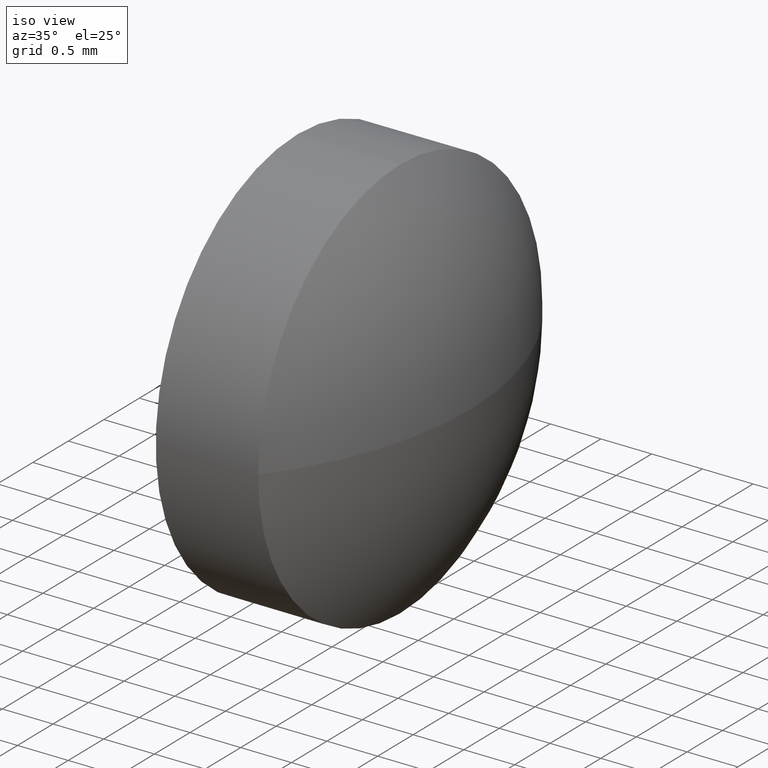
[diagram: clean part render]
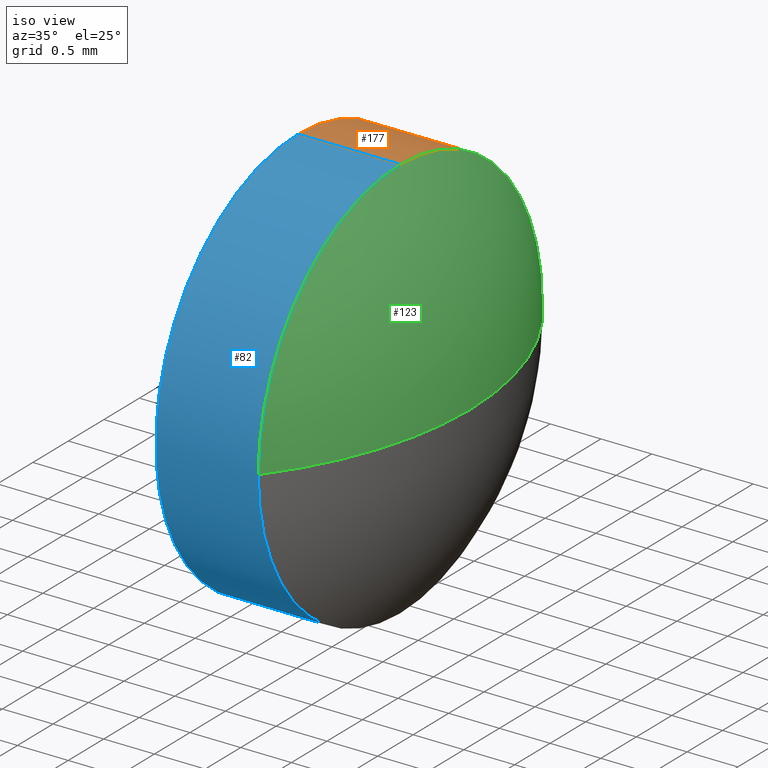
[diagram: same view with three faces highlighted in distinct colors, each labeled with its STEP entity id]
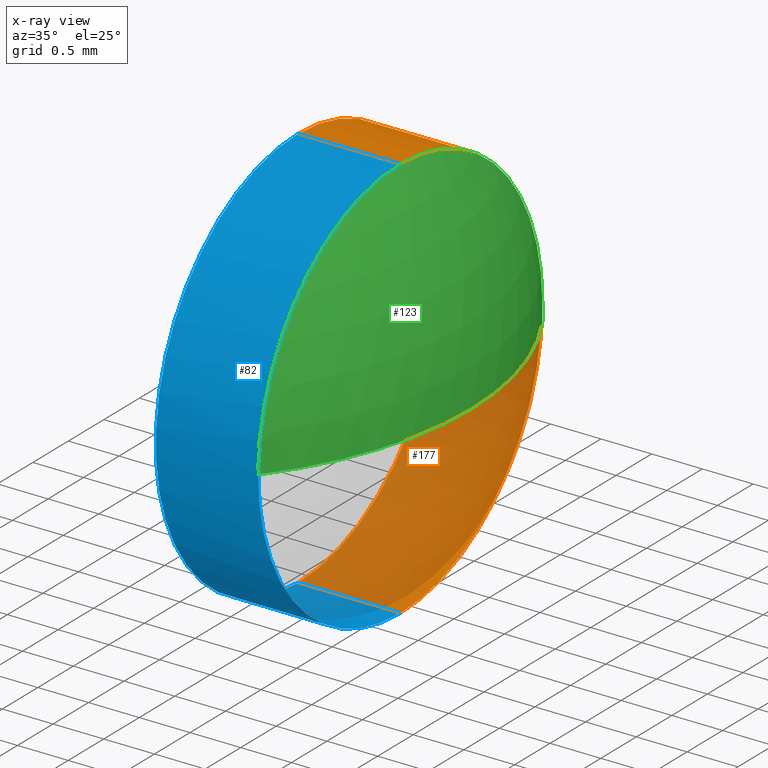
[diagram: x-ray of the same camera — body ghosted, the three highlighted faces saturated]
A machine part, iso view with three faces highlighted in distinct colors.
The next image is the same camera in x-ray (body ghosted, the three faces saturated) — at least one of them is partly hidden behind the body in this view.
Their STEP definitions:

[orange] entity #177 — the highlighted cylindrical surface (partial cylindrical patch) has radius 2 mm, axis along (-1, -0, -0).
#1 = LINE ( 'NONE', #116, #63 ) ;
#3 = ORIENTED_EDGE ( 'NONE', *, *, #127, .F. ) ;
#5 = CARTESIAN_POINT ( 'NONE',  ( 388.6927272250636600, 21.68539423568211400, 1.999999999999998200 ) ) ;
#6 = CIRCLE ( 'NONE', #174, 1.999999999999998200 ) ;
#10 = ORIENTED_EDGE ( 'NONE', *, *, #101, .T. ) ;
#12 = DIRECTION ( 'NONE',  ( -1.000000000000000000, -0.0000000000000000000, -0.0000000000000000000 ) ) ;
#15 = AXIS2_PLACEMENT_3D ( 'NONE', #49, #17, #131 ) ;
#17 = DIRECTION ( 'NONE',  ( -1.000000000000000000, -0.0000000000000000000, -0.0000000000000000000 ) ) ;
#23 = VERTEX_POINT ( 'NONE', #126 ) ;
#24 = FACE_OUTER_BOUND ( 'NONE', #73, .T. ) ;
#28 = VECTOR ( 'NONE', #60, 1000.000000000000000 ) ;
#34 = DIRECTION ( 'NONE',  ( -1.000000000000000000, -0.0000000000000000000, -0.0000000000000000000 ) ) ;
#36 = DIRECTION ( 'NONE',  ( 0.0000000000000000000, 0.0000000000000000000, 1.000000000000000000 ) ) ;
#44 = CIRCLE ( 'NONE', #15, 1.999999999999998200 ) ;
#48 = ORIENTED_EDGE ( 'NONE', *, *, #114, .F. ) ;
#49 = CARTESIAN_POINT ( 'NONE',  ( 387.6827272250636700, 21.68539423568211400, 0.0000000000000000000 ) ) ;
#57 = CYLINDRICAL_SURFACE ( 'NONE', #158, 1.999999999999998200 ) ;
#60 = DIRECTION ( 'NONE',  ( -1.000000000000000000, -0.0000000000000000000, -0.0000000000000000000 ) ) ;
#63 = VECTOR ( 'NONE', #181, 1000.000000000000000 ) ;
#73 = EDGE_LOOP ( 'NONE', ( #154, #10, #48, #3, #102 ) ) ;
#74 = LINE ( 'NONE', #103, #28 ) ;
#92 = CARTESIAN_POINT ( 'NONE',  ( 387.3354766660683600, 21.68539423568211400, 0.0000000000000000000 ) ) ;
#96 = CARTESIAN_POINT ( 'NONE',  ( 388.6927272250636600, 21.68539423568211400, 0.0000000000000000000 ) ) ;
#99 = VERTEX_POINT ( 'NONE', #5 ) ;
#101 = EDGE_CURVE ( 'NONE', #107, #162, #1, .T. ) ;
#102 = ORIENTED_EDGE ( 'NONE', *, *, #160, .T. ) ;
#103 = CARTESIAN_POINT ( 'NONE',  ( 387.3354766660683600, 21.68539423568211400, 1.999999999999998200 ) ) ;
#106 = CARTESIAN_POINT ( 'NONE',  ( 388.6927272250636600, 21.68539423568211400, 0.0000000000000000000 ) ) ;
#107 = VERTEX_POINT ( 'NONE', #165 ) ;
#109 = CARTESIAN_POINT ( 'NONE',  ( 387.6827272250636700, 21.68539423568211400, -1.999999999999998200 ) ) ;
#114 = EDGE_CURVE ( 'NONE', #23, #162, #44, .T. ) ;
#116 = CARTESIAN_POINT ( 'NONE',  ( 387.3354766660683600, 21.68539423568211400, -1.999999999999998200 ) ) ;
#118 = DIRECTION ( 'NONE',  ( 0.0000000000000000000, 0.0000000000000000000, 1.000000000000000000 ) ) ;
#126 = CARTESIAN_POINT ( 'NONE',  ( 387.6827272250636700, 21.68539423568211400, 1.999999999999998200 ) ) ;
#127 = EDGE_CURVE ( 'NONE', #99, #23, #74, .T. ) ;
#131 = DIRECTION ( 'NONE',  ( 0.0000000000000000000, 0.0000000000000000000, 1.000000000000000000 ) ) ;
#144 = VERTEX_POINT ( 'NONE', #146 ) ;
#146 = CARTESIAN_POINT ( 'NONE',  ( 388.6927272250636600, 23.68539423568211800, 2.449293598294706900E-016 ) ) ;
#148 = EDGE_CURVE ( 'NONE', #144, #107, #184, .T. ) ;
#153 = DIRECTION ( 'NONE',  ( -1.000000000000000000, -0.0000000000000000000, -0.0000000000000000000 ) ) ;
#154 = ORIENTED_EDGE ( 'NONE', *, *, #148, .T. ) ;
#158 = AXIS2_PLACEMENT_3D ( 'NONE', #92, #34, #118 ) ;
#160 = EDGE_CURVE ( 'NONE', #99, #144, #6, .T. ) ;
#162 = VERTEX_POINT ( 'NONE', #109 ) ;
#165 = CARTESIAN_POINT ( 'NONE',  ( 388.6927272250636600, 21.68539423568211400, -1.999999999999998200 ) ) ;
#171 = DIRECTION ( 'NONE',  ( 0.0000000000000000000, 0.0000000000000000000, 1.000000000000000000 ) ) ;
#174 = AXIS2_PLACEMENT_3D ( 'NONE', #106, #12, #171 ) ;
#175 = AXIS2_PLACEMENT_3D ( 'NONE', #96, #153, #36 ) ;
#177 = ADVANCED_FACE ( 'NONE', ( #24 ), #57, .T. ) ;
#181 = DIRECTION ( 'NONE',  ( -1.000000000000000000, -0.0000000000000000000, -0.0000000000000000000 ) ) ;
#184 = CIRCLE ( 'NONE', #175, 1.999999999999998200 ) ;

[blue] entity #82 — the highlighted cylindrical surface (partial cylindrical patch) has radius 2 mm, axis along (-1, -0, -0).
#1 = LINE ( 'NONE', #116, #63 ) ;
#5 = CARTESIAN_POINT ( 'NONE',  ( 388.6927272250636600, 21.68539423568211400, 1.999999999999998200 ) ) ;
#7 = CARTESIAN_POINT ( 'NONE',  ( 388.6927272250636600, 19.68539423568211400, 0.0000000000000000000 ) ) ;
#11 = DIRECTION ( 'NONE',  ( -1.000000000000000000, -0.0000000000000000000, -0.0000000000000000000 ) ) ;
#18 = AXIS2_PLACEMENT_3D ( 'NONE', #65, #11, #124 ) ;
#23 = VERTEX_POINT ( 'NONE', #126 ) ;
#28 = VECTOR ( 'NONE', #60, 1000.000000000000000 ) ;
#31 = CYLINDRICAL_SURFACE ( 'NONE', #185, 1.999999999999998200 ) ;
#54 = DIRECTION ( 'NONE',  ( -1.000000000000000000, -0.0000000000000000000, -0.0000000000000000000 ) ) ;
#55 = CARTESIAN_POINT ( 'NONE',  ( 387.3354766660683600, 21.68539423568211400, 0.0000000000000000000 ) ) ;
#60 = DIRECTION ( 'NONE',  ( -1.000000000000000000, -0.0000000000000000000, -0.0000000000000000000 ) ) ;
#63 = VECTOR ( 'NONE', #181, 1000.000000000000000 ) ;
#64 = EDGE_CURVE ( 'NONE', #107, #125, #136, .T. ) ;
#65 = CARTESIAN_POINT ( 'NONE',  ( 387.6827272250636700, 21.68539423568211400, 0.0000000000000000000 ) ) ;
#74 = LINE ( 'NONE', #103, #28 ) ;
#81 = CIRCLE ( 'NONE', #134, 1.999999999999998200 ) ;
#82 = ADVANCED_FACE ( 'NONE', ( #100 ), #31, .T. ) ;
#84 = DIRECTION ( 'NONE',  ( 0.0000000000000000000, 0.0000000000000000000, 1.000000000000000000 ) ) ;
#88 = ORIENTED_EDGE ( 'NONE', *, *, #127, .T. ) ;
#91 = DIRECTION ( 'NONE',  ( 0.0000000000000000000, 0.0000000000000000000, 1.000000000000000000 ) ) ;
#97 = EDGE_CURVE ( 'NONE', #125, #99, #81, .T. ) ;
#98 = DIRECTION ( 'NONE',  ( -1.000000000000000000, -0.0000000000000000000, -0.0000000000000000000 ) ) ;
#99 = VERTEX_POINT ( 'NONE', #5 ) ;
#100 = FACE_OUTER_BOUND ( 'NONE', #145, .T. ) ;
#101 = EDGE_CURVE ( 'NONE', #107, #162, #1, .T. ) ;
#103 = CARTESIAN_POINT ( 'NONE',  ( 387.3354766660683600, 21.68539423568211400, 1.999999999999998200 ) ) ;
#105 = DIRECTION ( 'NONE',  ( 0.0000000000000000000, 0.0000000000000000000, 1.000000000000000000 ) ) ;
#107 = VERTEX_POINT ( 'NONE', #165 ) ;
#109 = CARTESIAN_POINT ( 'NONE',  ( 387.6827272250636700, 21.68539423568211400, -1.999999999999998200 ) ) ;
#116 = CARTESIAN_POINT ( 'NONE',  ( 387.3354766660683600, 21.68539423568211400, -1.999999999999998200 ) ) ;
#120 = ORIENTED_EDGE ( 'NONE', *, *, #101, .F. ) ;
#124 = DIRECTION ( 'NONE',  ( 0.0000000000000000000, 0.0000000000000000000, 1.000000000000000000 ) ) ;
#125 = VERTEX_POINT ( 'NONE', #7 ) ;
#126 = CARTESIAN_POINT ( 'NONE',  ( 387.6827272250636700, 21.68539423568211400, 1.999999999999998200 ) ) ;
#127 = EDGE_CURVE ( 'NONE', #99, #23, #74, .T. ) ;
#128 = ORIENTED_EDGE ( 'NONE', *, *, #97, .T. ) ;
#132 = CIRCLE ( 'NONE', #18, 1.999999999999998200 ) ;
#134 = AXIS2_PLACEMENT_3D ( 'NONE', #179, #147, #105 ) ;
#136 = CIRCLE ( 'NONE', #178, 1.999999999999998200 ) ;
#142 = EDGE_CURVE ( 'NONE', #162, #23, #132, .T. ) ;
#145 = EDGE_LOOP ( 'NONE', ( #120, #163, #128, #88, #186 ) ) ;
#147 = DIRECTION ( 'NONE',  ( -1.000000000000000000, -0.0000000000000000000, -0.0000000000000000000 ) ) ;
#157 = CARTESIAN_POINT ( 'NONE',  ( 388.6927272250636600, 21.68539423568211400, 0.0000000000000000000 ) ) ;
#162 = VERTEX_POINT ( 'NONE', #109 ) ;
#163 = ORIENTED_EDGE ( 'NONE', *, *, #64, .T. ) ;
#165 = CARTESIAN_POINT ( 'NONE',  ( 388.6927272250636600, 21.68539423568211400, -1.999999999999998200 ) ) ;
#178 = AXIS2_PLACEMENT_3D ( 'NONE', #157, #54, #91 ) ;
#179 = CARTESIAN_POINT ( 'NONE',  ( 388.6927272250636600, 21.68539423568211400, 0.0000000000000000000 ) ) ;
#181 = DIRECTION ( 'NONE',  ( -1.000000000000000000, -0.0000000000000000000, -0.0000000000000000000 ) ) ;
#185 = AXIS2_PLACEMENT_3D ( 'NONE', #55, #98, #84 ) ;
#186 = ORIENTED_EDGE ( 'NONE', *, *, #142, .F. ) ;

[green] entity #123 — the highlighted spherical surface has radius 3.2436 mm.
#2 = SPHERICAL_SURFACE ( 'NONE', #164, 3.243550724637656900 ) ;
#4 = AXIS2_PLACEMENT_3D ( 'NONE', #95, #137, #51 ) ;
#5 = CARTESIAN_POINT ( 'NONE',  ( 388.6927272250636600, 21.68539423568211400, 1.999999999999998200 ) ) ;
#6 = CIRCLE ( 'NONE', #174, 1.999999999999998200 ) ;
#7 = CARTESIAN_POINT ( 'NONE',  ( 388.6927272250636600, 19.68539423568211400, 0.0000000000000000000 ) ) ;
#8 = DIRECTION ( 'NONE',  ( 0.0000000000000000000, -1.000000000000000000, 0.0000000000000000000 ) ) ;
#12 = DIRECTION ( 'NONE',  ( -1.000000000000000000, -0.0000000000000000000, -0.0000000000000000000 ) ) ;
#19 = DIRECTION ( 'NONE',  ( 0.0000000000000000000, 0.0000000000000000000, -1.000000000000000000 ) ) ;
#21 = ORIENTED_EDGE ( 'NONE', *, *, #138, .T. ) ;
#40 = AXIS2_PLACEMENT_3D ( 'NONE', #61, #19, #76 ) ;
#51 = DIRECTION ( 'NONE',  ( 0.0000000000000000000, -1.000000000000000000, -1.224646799147353200E-016 ) ) ;
#61 = CARTESIAN_POINT ( 'NONE',  ( 386.1391765004260000, 21.68539423568212100, 0.0000000000000000000 ) ) ;
#66 = ORIENTED_EDGE ( 'NONE', *, *, #122, .F. ) ;
#76 = DIRECTION ( 'NONE',  ( -1.000000000000000000, 0.0000000000000000000, 0.0000000000000000000 ) ) ;
#81 = CIRCLE ( 'NONE', #134, 1.999999999999998200 ) ;
#95 = CARTESIAN_POINT ( 'NONE',  ( 386.1391765004260000, 21.68539423568212100, 0.0000000000000000000 ) ) ;
#97 = EDGE_CURVE ( 'NONE', #125, #99, #81, .T. ) ;
#99 = VERTEX_POINT ( 'NONE', #5 ) ;
#104 = CARTESIAN_POINT ( 'NONE',  ( 386.1391765004260000, 21.68539423568212100, 0.0000000000000000000 ) ) ;
#105 = DIRECTION ( 'NONE',  ( 0.0000000000000000000, 0.0000000000000000000, 1.000000000000000000 ) ) ;
#106 = CARTESIAN_POINT ( 'NONE',  ( 388.6927272250636600, 21.68539423568211400, 0.0000000000000000000 ) ) ;
#113 = CIRCLE ( 'NONE', #40, 3.243550724637667100 ) ;
#117 = CIRCLE ( 'NONE', #4, 3.243550724637656900 ) ;
#122 = EDGE_CURVE ( 'NONE', #151, #125, #113, .T. ) ;
#123 = ADVANCED_FACE ( 'NONE', ( #143 ), #2, .T. ) ;
#125 = VERTEX_POINT ( 'NONE', #7 ) ;
#134 = AXIS2_PLACEMENT_3D ( 'NONE', #179, #147, #105 ) ;
#137 = DIRECTION ( 'NONE',  ( 0.0000000000000000000, -1.224646799147353200E-016, 1.000000000000000000 ) ) ;
#138 = EDGE_CURVE ( 'NONE', #151, #144, #117, .T. ) ;
#143 = FACE_OUTER_BOUND ( 'NONE', #169, .T. ) ;
#144 = VERTEX_POINT ( 'NONE', #146 ) ;
#146 = CARTESIAN_POINT ( 'NONE',  ( 388.6927272250636600, 23.68539423568211800, 2.449293598294706900E-016 ) ) ;
#147 = DIRECTION ( 'NONE',  ( -1.000000000000000000, -0.0000000000000000000, -0.0000000000000000000 ) ) ;
#149 = DIRECTION ( 'NONE',  ( 0.0000000000000000000, 0.0000000000000000000, 1.000000000000000000 ) ) ;
#150 = CARTESIAN_POINT ( 'NONE',  ( 389.3827272250636600, 21.68539423568212100, 0.0000000000000000000 ) ) ;
#151 = VERTEX_POINT ( 'NONE', #150 ) ;
#160 = EDGE_CURVE ( 'NONE', #99, #144, #6, .T. ) ;
#161 = ORIENTED_EDGE ( 'NONE', *, *, #160, .F. ) ;
#164 = AXIS2_PLACEMENT_3D ( 'NONE', #104, #149, #8 ) ;
#167 = ORIENTED_EDGE ( 'NONE', *, *, #97, .F. ) ;
#169 = EDGE_LOOP ( 'NONE', ( #66, #21, #161, #167 ) ) ;
#171 = DIRECTION ( 'NONE',  ( 0.0000000000000000000, 0.0000000000000000000, 1.000000000000000000 ) ) ;
#174 = AXIS2_PLACEMENT_3D ( 'NONE', #106, #12, #171 ) ;
#179 = CARTESIAN_POINT ( 'NONE',  ( 388.6927272250636600, 21.68539423568211400, 0.0000000000000000000 ) ) ;